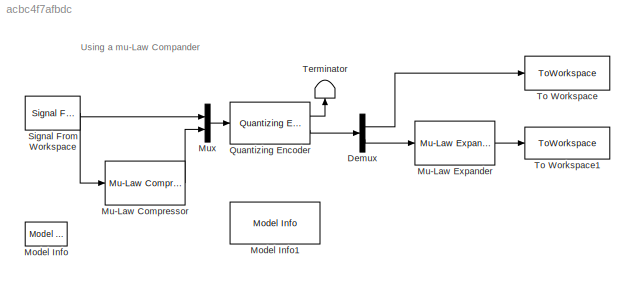
MODEL slx_acbc4f7afbdc
KIND model
BLOCK [Demux] Demux
  Outputs = 2
  Ports = [1, 2]
BLOCK [Reference] Model Info  REF=simulink/Model-Wide
Utilities/Model Info
  BlockCM = none
  DisplayStringWithTags = Info
  Frame = on
  HorizontalTextAlignment = Center
  InitialBlockCM = None
  LeftAlignmentValue = 0.5
  MaskDisplayString = Info
  Ports = []
  SourceBlock = simulink/Model-Wide\nUtilities/Model Info
  SourceBlockDiagram = doc_compander
  SourceType = CMBlock
  TagMaxNumber = 20
BLOCK [Reference] Model Info1  REF=simulink/Model-Wide
Utilities/Model Info
  BlockCM = none
  DisplayStringWithTags = Info
  Frame = on
  HorizontalTextAlignment = Center
  InitialBlockCM = None
  LeftAlignmentValue = 0.5
  MaskDisplayString = Info
  Ports = []
  SourceBlock = simulink/Model-Wide\nUtilities/Model Info
  SourceBlockDiagram = doc_compander
  SourceType = CMBlock
  TagMaxNumber = 20
BLOCK [Reference] Mu-Law Compressor  REF=commsrccod2/Mu-Law
Compressor
  Ports = [1, 1]
  SourceBlock = commsrccod2/Mu-Law\nCompressor
  SourceType = Mu-Law Compressor
  V = max(sig)
  mu = 255
BLOCK [Reference] Mu-Law Expander  REF=commsrccod2/Mu-Law
Expander
  Ports = [1, 1]
  SourceBlock = commsrccod2/Mu-Law\nExpander
  SourceType = Mu-Law Expander
  V = ceil(max(sig))
  mu = 255
BLOCK [Mux] Mux
  DisplayOption = bar
  Inputs = 2
  Ports = [2, 1]
BLOCK [Reference] Quantizing Encoder  REF=commsrccod2/Quantizing
Encoder
  Ports = [1, 2]
  SourceBlock = commsrccod2/Quantizing\nEncoder
  SourceType = Quantizing Encoder
  codebook = 0:ceil(max(sig))
  idxDType = double
  partition = 0:floor(max(sig))
BLOCK [Reference] Signal From Workspace  REF=dspsrcs4/Signal From
Workspace
  OutputAfterFinalValue = Setting to zero
  Ports = [0, 1]
  SourceBlock = dspsrcs4/Signal From\nWorkspace
  SourceType = Signal From Workspace
  Ts = 1
  X = sig
  ignoreOrWarnInputAndFrameLengths = off
  nsamps = 1
BLOCK [Terminator] Terminator
BLOCK [ToWorkspace] To Workspace
  MaxDataPoints = inf
  Ports = [1]
  SampleTime = -1
  VariableName = nocompander
BLOCK [ToWorkspace] To Workspace1
  MaxDataPoints = inf
  Ports = [1]
  SampleTime = -1
  VariableName = withcompander
ANNOTATION (root): Using a mu-Law Compander
LINE Demux:1 -> To Workspace:1
LINE Demux:2 -> Mu-Law Expander:1
LINE Mu-Law Compressor:1 -> Mux:2
LINE Mu-Law Expander:1 -> To Workspace1:1
LINE Mux:1 -> Quantizing Encoder:1
LINE Quantizing Encoder:1 -> Terminator:1
LINE Quantizing Encoder:2 -> Demux:1
NET Signal From Workspace:1 -> Mu-Law Compressor:1, Mux:1
note: NET lines group one-source signal fan-out (src -> all destinations, sorted); 1:1 wires keep LINE
